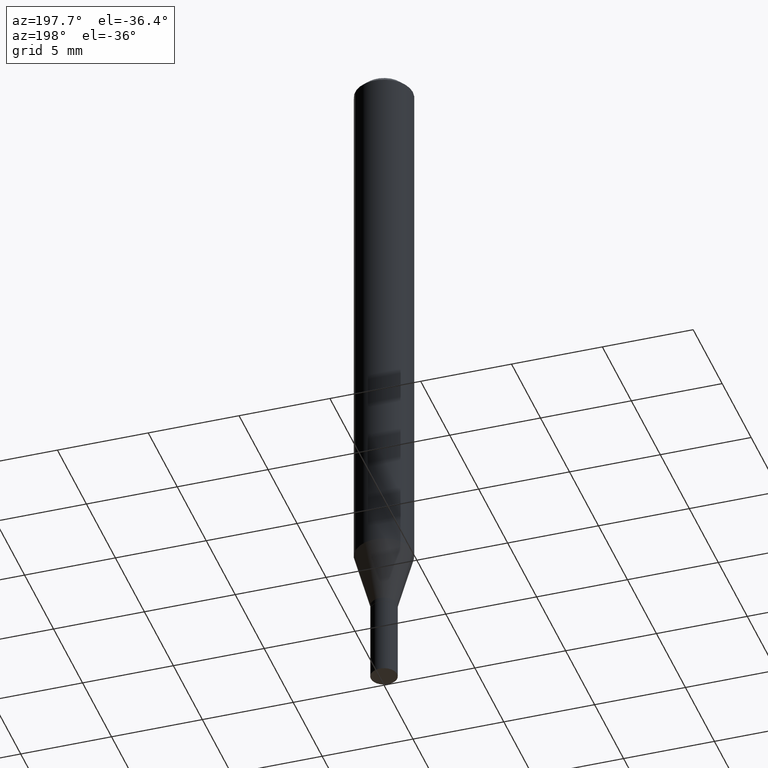
[diagram: clean part render]
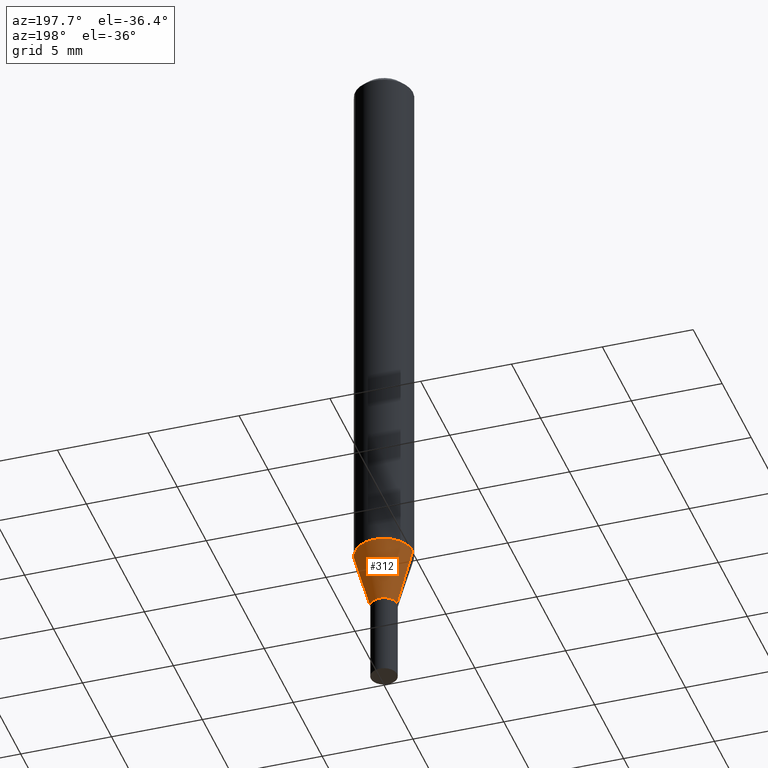
[diagram: same view with one face highlighted and labeled with its STEP entity id]
A machine part, auxiliary view. The second image highlights one B-rep face of the part: STEP entity #312.
In plain terms, the highlighted conical surface has half-angle 15 deg.
Its self-contained STEP definition (entity closure, byte-faithful):
#11 = CARTESIAN_POINT ( 'NONE',  ( 0.02849999999999991776, -4.804278322248167148E-15, -1.318999999999999950 ) ) ;
#29 = VERTEX_POINT ( 'NONE', #11 ) ;
#60 = VECTOR ( 'NONE', #243, 39.37007874015748854 ) ;
#68 = AXIS2_PLACEMENT_3D ( 'NONE', #129, #132, #201 ) ;
#70 = LINE ( 'NONE', #279, #60 ) ;
#107 = CIRCLE ( 'NONE', #189, 0.06250000000000000000 ) ;
#118 = EDGE_LOOP ( 'NONE', ( #437, #405, #244, #396 ) ) ;
#129 = CARTESIAN_POINT ( 'NONE',  ( 3.225573355358195400E-29, -4.605263885934108641E-15, -1.318999999999999950 ) ) ;
#132 = DIRECTION ( 'NONE',  ( -2.445468806185136597E-29, 3.491481338843145583E-15, 1.000000000000000000 ) ) ;
#153 = EDGE_CURVE ( 'NONE', #29, #356, #227, .T. ) ;
#173 = FACE_OUTER_BOUND ( 'NONE', #118, .T. ) ;
#179 = DIRECTION ( 'NONE',  ( 1.000000000000000000, -6.982962677686270655E-15, 0.000000000000000000 ) ) ;
#189 = AXIS2_PLACEMENT_3D ( 'NONE', #425, #362, #179 ) ;
#201 = DIRECTION ( 'NONE',  ( 1.000000000000000000, -6.982962677686268288E-15, 0.000000000000000000 ) ) ;
#210 = CARTESIAN_POINT ( 'NONE',  ( -0.02849999999999991776, -4.402759206242480303E-15, -1.318999999999999950 ) ) ;
#215 = DIRECTION ( 'NONE',  ( 1.000000000000000000, -6.982962677686268288E-15, 0.000000000000000000 ) ) ;
#227 = CIRCLE ( 'NONE', #68, 0.02849999999999991776 ) ;
#234 = AXIS2_PLACEMENT_3D ( 'NONE', #247, #397, #215 ) ;
#243 = DIRECTION ( 'NONE',  ( 0.2588190451025211836, 1.565188264969622559E-15, 0.9659258262890679791 ) ) ;
#244 = ORIENTED_EDGE ( 'NONE', *, *, #436, .F. ) ;
#247 = CARTESIAN_POINT ( 'NONE',  ( 3.225573355358195400E-29, -4.605263885934108641E-15, -1.318999999999999950 ) ) ;
#251 = CARTESIAN_POINT ( 'NONE',  ( -0.06250000000000000000, -3.718141560575843830E-15, -1.192110272542658223 ) ) ;
#279 = CARTESIAN_POINT ( 'NONE',  ( 0.02849999999999991776, -4.804278322248167148E-15, -1.318999999999999950 ) ) ;
#292 = LINE ( 'NONE', #210, #422 ) ;
#312 = ADVANCED_FACE ( 'NONE', ( #173 ), #441, .T. ) ;
#319 = DIRECTION ( 'NONE',  ( -0.2588190451025211836, 5.211531920934547886E-15, 0.9659258262890679791 ) ) ;
#322 = VERTEX_POINT ( 'NONE', #251 ) ;
#324 = VERTEX_POINT ( 'NONE', #460 ) ;
#338 = EDGE_CURVE ( 'NONE', #356, #322, #292, .T. ) ;
#356 = VERTEX_POINT ( 'NONE', #399 ) ;
#362 = DIRECTION ( 'NONE',  ( -2.445468806185136597E-29, 3.491481338843145583E-15, 1.000000000000000000 ) ) ;
#363 = EDGE_CURVE ( 'NONE', #29, #324, #70, .T. ) ;
#396 = ORIENTED_EDGE ( 'NONE', *, *, #363, .F. ) ;
#397 = DIRECTION ( 'NONE',  ( -2.445468806185136597E-29, 3.491481338843145583E-15, 1.000000000000000000 ) ) ;
#399 = CARTESIAN_POINT ( 'NONE',  ( -0.02849999999999991776, -4.060450383409162461E-15, -1.318999999999999950 ) ) ;
#405 = ORIENTED_EDGE ( 'NONE', *, *, #338, .T. ) ;
#422 = VECTOR ( 'NONE', #319, 39.37007874015748854 ) ;
#425 = CARTESIAN_POINT ( 'NONE',  ( 2.915268485035931806E-29, -4.162230770425907235E-15, -1.192110272542658223 ) ) ;
#436 = EDGE_CURVE ( 'NONE', #324, #322, #107, .T. ) ;
#437 = ORIENTED_EDGE ( 'NONE', *, *, #153, .T. ) ;
#441 = CONICAL_SURFACE ( 'NONE', #234, 0.02849999999999991776, 0.2617993877991499074 ) ;
#460 = CARTESIAN_POINT ( 'NONE',  ( 0.06250000000000000000, -4.598665937781298116E-15, -1.192110272542658223 ) ) ;